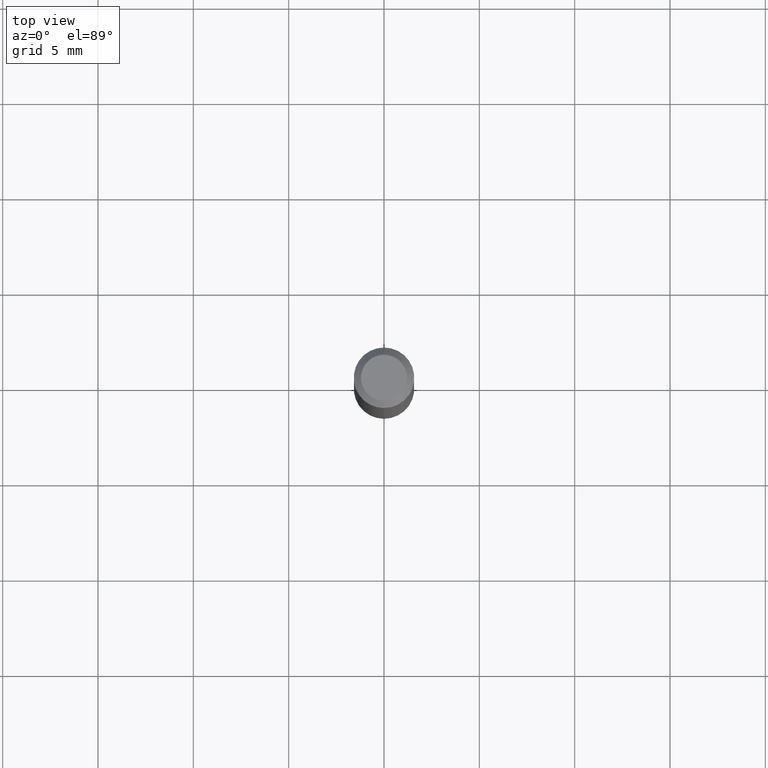
[diagram: clean part render]
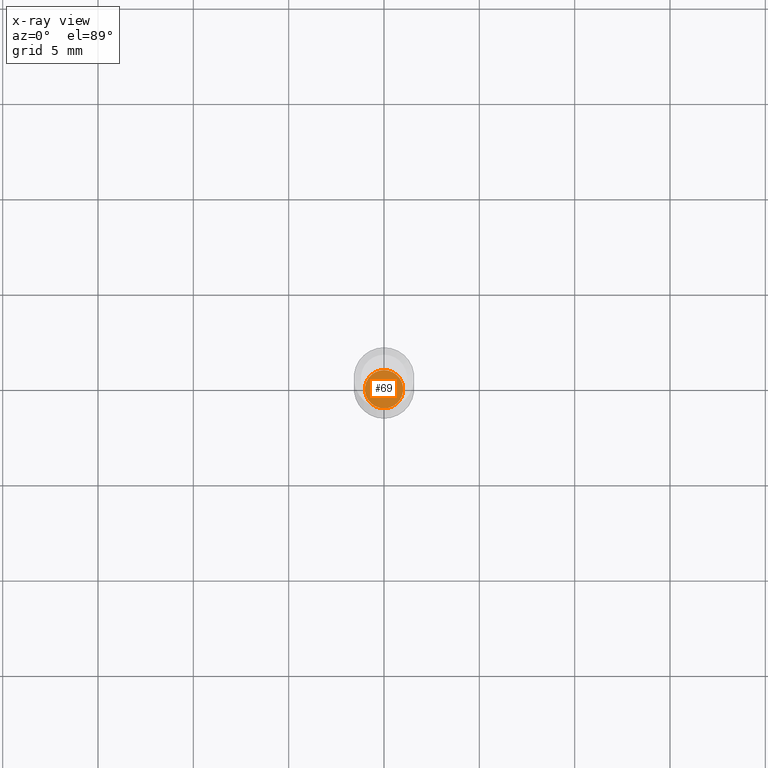
[diagram: x-ray — body ghosted, one internal face saturated and labeled with its STEP entity id]
A machine part, top view, then the same camera in x-ray: the body is ghosted and one INTERNAL B-rep face — a face not visible from any outside direction — is saturated and labeled: STEP entity #69.
In plain terms, the highlighted planar face has unit normal (-0, 0, 1).
Its self-contained STEP definition (entity closure, byte-faithful):
#31 = DIRECTION ( 'NONE',  ( -6.982962677686265922E-15, -1.000000000000000000, 3.491499672051869513E-15 ) ) ;
#69 = ADVANCED_FACE ( 'NONE', ( #420 ), #388, .F. ) ;
#72 = VERTEX_POINT ( 'NONE', #195 ) ;
#83 = AXIS2_PLACEMENT_3D ( 'NONE', #486, #134, #247 ) ;
#89 = ORIENTED_EDGE ( 'NONE', *, *, #362, .F. ) ;
#100 = DIRECTION ( 'NONE',  ( -2.445456004173908007E-29, 3.491499672051869513E-15, 1.000000000000000000 ) ) ;
#123 = AXIS2_PLACEMENT_3D ( 'NONE', #163, #319, #233 ) ;
#134 = DIRECTION ( 'NONE',  ( -2.445456004173908568E-29, 3.491499672051869513E-15, 1.000000000000000000 ) ) ;
#163 = CARTESIAN_POINT ( 'NONE',  ( 3.374729285759993869E-29, -4.818269547431580299E-15, -1.380000000000000115 ) ) ;
#195 = CARTESIAN_POINT ( 'NONE',  ( -2.758270257685737501E-16, -0.03950000000000481598, -1.379999999999999671 ) ) ;
#224 = CIRCLE ( 'NONE', #83, 0.03950000000000000039 ) ;
#233 = DIRECTION ( 'NONE',  ( -6.982962677686265133E-15, -1.000000000000000000, 6.916070870036109544E-15 ) ) ;
#247 = DIRECTION ( 'NONE',  ( -6.982962677686265133E-15, -1.000000000000000000, 6.916070870036109544E-15 ) ) ;
#277 = CIRCLE ( 'NONE', #123, 0.03950000000000000039 ) ;
#300 = CARTESIAN_POINT ( 'NONE',  ( 3.374729285759993869E-29, -4.818269547431580299E-15, -1.380000000000000115 ) ) ;
#319 = DIRECTION ( 'NONE',  ( -2.445456004173908568E-29, 3.491499672051869513E-15, 1.000000000000000000 ) ) ;
#323 = AXIS2_PLACEMENT_3D ( 'NONE', #300, #100, #31 ) ;
#325 = EDGE_LOOP ( 'NONE', ( #89, #340 ) ) ;
#340 = ORIENTED_EDGE ( 'NONE', *, *, #413, .F. ) ;
#362 = EDGE_CURVE ( 'NONE', #72, #461, #224, .T. ) ;
#388 = PLANE ( 'NONE',  #323 ) ;
#413 = EDGE_CURVE ( 'NONE', #461, #72, #277, .T. ) ;
#420 = FACE_OUTER_BOUND ( 'NONE', #325, .T. ) ;
#460 = CARTESIAN_POINT ( 'NONE',  ( 2.824407374646732069E-16, 0.03949999999999518480, -1.380000000000000338 ) ) ;
#461 = VERTEX_POINT ( 'NONE', #460 ) ;
#486 = CARTESIAN_POINT ( 'NONE',  ( 3.374729285759993869E-29, -4.818269547431580299E-15, -1.380000000000000115 ) ) ;